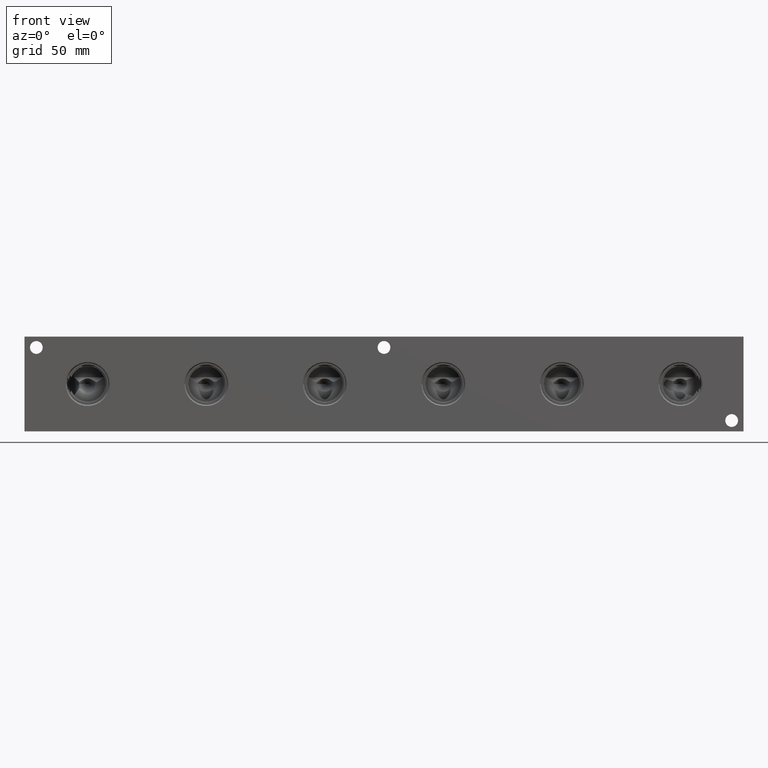
[diagram: clean part render]
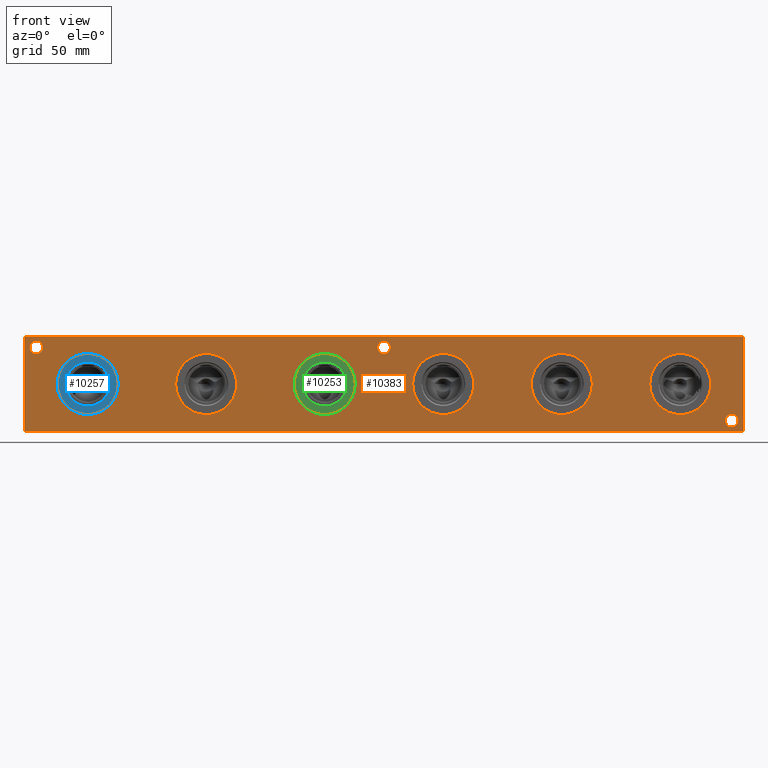
[diagram: same view with three faces highlighted in distinct colors, each labeled with its STEP entity id]
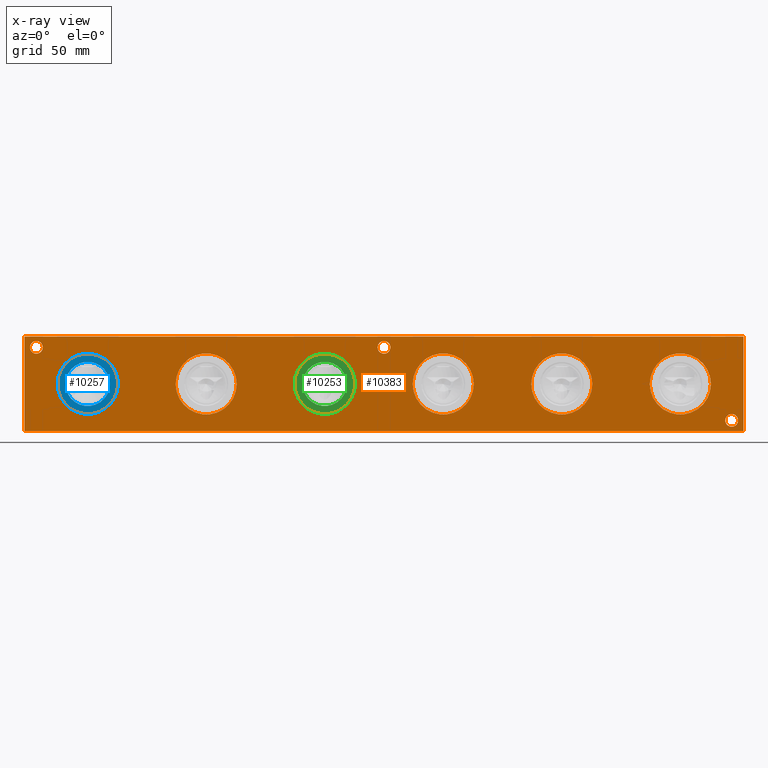
[diagram: x-ray of the same camera — body ghosted, the three highlighted faces saturated]
A machine part, front view with three faces highlighted in distinct colors.
The next image is the same camera in x-ray (body ghosted, the three faces saturated) — at least one of them is partly hidden behind the body in this view.
Their STEP definitions:

[orange] entity #10383 — the highlighted planar face has unit normal (0, -1, 0).
#431=CIRCLE('',#10884,24.5618);
#432=CIRCLE('',#10885,24.5618);
#436=CIRCLE('',#10898,24.5618);
#437=CIRCLE('',#10899,24.5618);
#441=CIRCLE('',#10907,24.5618);
#442=CIRCLE('',#10908,24.5618);
#446=CIRCLE('',#10921,24.5618);
#447=CIRCLE('',#10922,24.5618);
#451=CIRCLE('',#10935,24.5618);
#452=CIRCLE('',#10936,24.5618);
#456=CIRCLE('',#10944,24.5618);
#457=CIRCLE('',#10945,24.5618);
#470=CIRCLE('',#10974,5.1562);
#471=CIRCLE('',#10975,5.1562);
#473=CIRCLE('',#10983,5.1562);
#474=CIRCLE('',#10984,5.1562);
#476=CIRCLE('',#10992,5.1562);
#477=CIRCLE('',#10993,5.1562);
#654=FACE_BOUND('',#2272,.T.);
#655=FACE_BOUND('',#2273,.T.);
#656=FACE_BOUND('',#2274,.T.);
#657=FACE_BOUND('',#2275,.T.);
#658=FACE_BOUND('',#2276,.T.);
#659=FACE_BOUND('',#2277,.T.);
#660=FACE_BOUND('',#2278,.T.);
#661=FACE_BOUND('',#2279,.T.);
#662=FACE_BOUND('',#2280,.T.);
#1654=FACE_OUTER_BOUND('',#2271,.T.);
#2271=EDGE_LOOP('',(#9257,#9258,#9259,#9260));
#2272=EDGE_LOOP('',(#9261,#9262));
#2273=EDGE_LOOP('',(#9263,#9264));
#2274=EDGE_LOOP('',(#9265,#9266));
#2275=EDGE_LOOP('',(#9267,#9268));
#2276=EDGE_LOOP('',(#9269,#9270));
#2277=EDGE_LOOP('',(#9271,#9272));
#2278=EDGE_LOOP('',(#9273,#9274));
#2279=EDGE_LOOP('',(#9275,#9276));
#2280=EDGE_LOOP('',(#9277,#9278));
#2546=LINE('',#15995,#3332);
#3065=LINE('',#18793,#3851);
#3070=LINE('',#18802,#3856);
#3071=LINE('',#18804,#3857);
#3332=VECTOR('',#11585,10.);
#3851=VECTOR('',#13574,10.);
#3856=VECTOR('',#13583,10.);
#3857=VECTOR('',#13586,10.);
#4178=VERTEX_POINT('',#15993);
#4179=VERTEX_POINT('',#15994);
#4666=VERTEX_POINT('',#18082);
#4667=VERTEX_POINT('',#18083);
#4675=VERTEX_POINT('',#18130);
#4676=VERTEX_POINT('',#18131);
#4681=VERTEX_POINT('',#18148);
#4682=VERTEX_POINT('',#18149);
#4690=VERTEX_POINT('',#18196);
#4691=VERTEX_POINT('',#18197);
#4699=VERTEX_POINT('',#18244);
#4700=VERTEX_POINT('',#18245);
#4707=VERTEX_POINT('',#18298);
#4708=VERTEX_POINT('',#18299);
#4710=VERTEX_POINT('',#18352);
#4711=VERTEX_POINT('',#18353);
#4715=VERTEX_POINT('',#18368);
#4716=VERTEX_POINT('',#18369);
#4720=VERTEX_POINT('',#18384);
#4721=VERTEX_POINT('',#18385);
#4834=VERTEX_POINT('',#18791);
#4836=VERTEX_POINT('',#18800);
#5317=EDGE_CURVE('',#4178,#4179,#2546,.T.);
#6033=EDGE_CURVE('',#4666,#4667,#431,.T.);
#6034=EDGE_CURVE('',#4667,#4666,#432,.T.);
#6046=EDGE_CURVE('',#4675,#4676,#436,.T.);
#6047=EDGE_CURVE('',#4676,#4675,#437,.T.);
#6054=EDGE_CURVE('',#4681,#4682,#441,.T.);
#6055=EDGE_CURVE('',#4682,#4681,#442,.T.);
#6067=EDGE_CURVE('',#4690,#4691,#446,.T.);
#6068=EDGE_CURVE('',#4691,#4690,#447,.T.);
#6080=EDGE_CURVE('',#4699,#4700,#451,.T.);
#6081=EDGE_CURVE('',#4700,#4699,#452,.T.);
#6091=EDGE_CURVE('',#4707,#4708,#456,.T.);
#6092=EDGE_CURVE('',#4708,#4707,#457,.T.);
#6109=EDGE_CURVE('',#4710,#4711,#470,.T.);
#6110=EDGE_CURVE('',#4711,#4710,#471,.T.);
#6118=EDGE_CURVE('',#4715,#4716,#473,.T.);
#6119=EDGE_CURVE('',#4716,#4715,#474,.T.);
#6127=EDGE_CURVE('',#4720,#4721,#476,.T.);
#6128=EDGE_CURVE('',#4721,#4720,#477,.T.);
#6314=EDGE_CURVE('',#4834,#4178,#3065,.T.);
#6319=EDGE_CURVE('',#4836,#4179,#3070,.T.);
#6320=EDGE_CURVE('',#4834,#4836,#3071,.T.);
#9257=ORIENTED_EDGE('',*,*,#6320,.T.);
#9258=ORIENTED_EDGE('',*,*,#6319,.T.);
#9259=ORIENTED_EDGE('',*,*,#5317,.F.);
#9260=ORIENTED_EDGE('',*,*,#6314,.F.);
#9261=ORIENTED_EDGE('',*,*,#6033,.T.);
#9262=ORIENTED_EDGE('',*,*,#6034,.T.);
#9263=ORIENTED_EDGE('',*,*,#6046,.T.);
#9264=ORIENTED_EDGE('',*,*,#6047,.T.);
#9265=ORIENTED_EDGE('',*,*,#6054,.T.);
#9266=ORIENTED_EDGE('',*,*,#6055,.T.);
#9267=ORIENTED_EDGE('',*,*,#6067,.T.);
#9268=ORIENTED_EDGE('',*,*,#6068,.T.);
#9269=ORIENTED_EDGE('',*,*,#6080,.T.);
#9270=ORIENTED_EDGE('',*,*,#6081,.T.);
#9271=ORIENTED_EDGE('',*,*,#6091,.T.);
#9272=ORIENTED_EDGE('',*,*,#6092,.T.);
#9273=ORIENTED_EDGE('',*,*,#6109,.T.);
#9274=ORIENTED_EDGE('',*,*,#6110,.T.);
#9275=ORIENTED_EDGE('',*,*,#6118,.T.);
#9276=ORIENTED_EDGE('',*,*,#6119,.T.);
#9277=ORIENTED_EDGE('',*,*,#6127,.T.);
#9278=ORIENTED_EDGE('',*,*,#6128,.T.);
#9521=PLANE('',#11198);
#10383=ADVANCED_FACE('',(#1654,#654,#655,#656,#657,#658,#659,#660,#661,
#662),#9521,.T.);
#10884=AXIS2_PLACEMENT_3D('',#18084,#12860,#12861);
#10885=AXIS2_PLACEMENT_3D('',#18085,#12862,#12863);
#10898=AXIS2_PLACEMENT_3D('',#18132,#12891,#12892);
#10899=AXIS2_PLACEMENT_3D('',#18133,#12893,#12894);
#10907=AXIS2_PLACEMENT_3D('',#18150,#12912,#12913);
#10908=AXIS2_PLACEMENT_3D('',#18151,#12914,#12915);
#10921=AXIS2_PLACEMENT_3D('',#18198,#12943,#12944);
#10922=AXIS2_PLACEMENT_3D('',#18199,#12945,#12946);
#10935=AXIS2_PLACEMENT_3D('',#18246,#12974,#12975);
#10936=AXIS2_PLACEMENT_3D('',#18247,#12976,#12977);
#10944=AXIS2_PLACEMENT_3D('',#18300,#12995,#12996);
#10945=AXIS2_PLACEMENT_3D('',#18301,#12997,#12998);
#10974=AXIS2_PLACEMENT_3D('',#18354,#13058,#13059);
#10975=AXIS2_PLACEMENT_3D('',#18355,#13060,#13061);
#10983=AXIS2_PLACEMENT_3D('',#18370,#13078,#13079);
#10984=AXIS2_PLACEMENT_3D('',#18371,#13080,#13081);
#10992=AXIS2_PLACEMENT_3D('',#18386,#13098,#13099);
#10993=AXIS2_PLACEMENT_3D('',#18387,#13100,#13101);
#11198=AXIS2_PLACEMENT_3D('',#18803,#13584,#13585);
#11585=DIRECTION('',(1.,0.,0.));
#12860=DIRECTION('center_axis',(0.,1.,0.));
#12861=DIRECTION('ref_axis',(1.,0.,0.));
#12862=DIRECTION('center_axis',(0.,1.,0.));
#12863=DIRECTION('ref_axis',(1.,0.,0.));
#12891=DIRECTION('center_axis',(0.,1.,0.));
#12892=DIRECTION('ref_axis',(1.,0.,0.));
#12893=DIRECTION('center_axis',(0.,1.,0.));
#12894=DIRECTION('ref_axis',(1.,0.,0.));
#12912=DIRECTION('center_axis',(0.,1.,0.));
#12913=DIRECTION('ref_axis',(1.,0.,0.));
#12914=DIRECTION('center_axis',(0.,1.,0.));
#12915=DIRECTION('ref_axis',(1.,0.,0.));
#12943=DIRECTION('center_axis',(0.,1.,0.));
#12944=DIRECTION('ref_axis',(1.,0.,0.));
#12945=DIRECTION('center_axis',(0.,1.,0.));
#12946=DIRECTION('ref_axis',(1.,0.,0.));
#12974=DIRECTION('center_axis',(0.,1.,0.));
#12975=DIRECTION('ref_axis',(1.,0.,0.));
#12976=DIRECTION('center_axis',(0.,1.,0.));
#12977=DIRECTION('ref_axis',(1.,0.,0.));
#12995=DIRECTION('center_axis',(0.,1.,0.));
#12996=DIRECTION('ref_axis',(1.,0.,0.));
#12997=DIRECTION('center_axis',(0.,1.,0.));
#12998=DIRECTION('ref_axis',(1.,0.,0.));
#13058=DIRECTION('center_axis',(0.,1.,0.));
#13059=DIRECTION('ref_axis',(1.,0.,0.));
#13060=DIRECTION('center_axis',(0.,1.,0.));
#13061=DIRECTION('ref_axis',(1.,0.,0.));
#13078=DIRECTION('center_axis',(0.,1.,0.));
#13079=DIRECTION('ref_axis',(1.,0.,0.));
#13080=DIRECTION('center_axis',(0.,1.,0.));
#13081=DIRECTION('ref_axis',(1.,0.,0.));
#13098=DIRECTION('center_axis',(0.,1.,0.));
#13099=DIRECTION('ref_axis',(1.,0.,0.));
#13100=DIRECTION('center_axis',(0.,1.,0.));
#13101=DIRECTION('ref_axis',(1.,0.,0.));
#13574=DIRECTION('',(0.,0.,1.));
#13583=DIRECTION('',(0.,0.,1.));
#13584=DIRECTION('center_axis',(0.,-1.,0.));
#13585=DIRECTION('ref_axis',(1.,0.,0.));
#13586=DIRECTION('',(1.,0.,0.));
#15993=CARTESIAN_POINT('',(0.,0.,76.2));
#15994=CARTESIAN_POINT('',(577.85,0.,76.2));
#15995=CARTESIAN_POINT('',(0.,0.,76.2));
#18082=CARTESIAN_POINT('',(456.3618,0.,38.1));
#18083=CARTESIAN_POINT('',(407.2382,0.,38.1));
#18084=CARTESIAN_POINT('Origin',(431.8,0.,38.1));
#18085=CARTESIAN_POINT('Origin',(431.8,0.,38.1));
#18130=CARTESIAN_POINT('',(265.8618,0.,38.1));
#18131=CARTESIAN_POINT('',(216.7382,0.,38.1));
#18132=CARTESIAN_POINT('Origin',(241.3,0.,38.1));
#18133=CARTESIAN_POINT('Origin',(241.3,0.,38.1));
#18148=CARTESIAN_POINT('',(75.3618,0.,38.1));
#18149=CARTESIAN_POINT('',(26.2382,0.,38.1));
#18150=CARTESIAN_POINT('Origin',(50.8,0.,38.1));
#18151=CARTESIAN_POINT('Origin',(50.8,0.,38.1));
#18196=CARTESIAN_POINT('',(170.6118,0.,38.1));
#18197=CARTESIAN_POINT('',(121.4882,0.,38.1));
#18198=CARTESIAN_POINT('Origin',(146.05,0.,38.1));
#18199=CARTESIAN_POINT('Origin',(146.05,0.,38.1));
#18244=CARTESIAN_POINT('',(361.1118,0.,38.1));
#18245=CARTESIAN_POINT('',(311.9882,0.,38.1));
#18246=CARTESIAN_POINT('Origin',(336.55,0.,38.1));
#18247=CARTESIAN_POINT('Origin',(336.55,0.,38.1));
#18298=CARTESIAN_POINT('',(551.6118,0.,38.1));
#18299=CARTESIAN_POINT('',(502.4882,0.,38.1));
#18300=CARTESIAN_POINT('Origin',(527.05,0.,38.1));
#18301=CARTESIAN_POINT('Origin',(527.05,0.,38.1));
#18352=CARTESIAN_POINT('',(294.0812,0.,67.4624));
#18353=CARTESIAN_POINT('',(283.7688,0.,67.4624));
#18354=CARTESIAN_POINT('Origin',(288.925,0.,67.4624));
#18355=CARTESIAN_POINT('Origin',(288.925,0.,67.4624));
#18368=CARTESIAN_POINT('',(14.6812,0.,67.4624));
#18369=CARTESIAN_POINT('',(4.3688,0.,67.4624));
#18370=CARTESIAN_POINT('Origin',(9.525,0.,67.4624));
#18371=CARTESIAN_POINT('Origin',(9.525,0.,67.4624));
#18384=CARTESIAN_POINT('',(573.4812,0.,8.7376));
#18385=CARTESIAN_POINT('',(563.1688,0.,8.7376));
#18386=CARTESIAN_POINT('Origin',(568.325,0.,8.7376));
#18387=CARTESIAN_POINT('Origin',(568.325,0.,8.7376));
#18791=CARTESIAN_POINT('',(0.,0.,0.));
#18793=CARTESIAN_POINT('',(0.,0.,0.));
#18800=CARTESIAN_POINT('',(577.85,0.,0.));
#18802=CARTESIAN_POINT('',(577.85,0.,0.));
#18803=CARTESIAN_POINT('Origin',(0.,0.,0.));
#18804=CARTESIAN_POINT('',(0.,0.,0.));

[blue] entity #10257 — the highlighted planar face has unit normal (0, -1, 0).
#438=CIRCLE('',#10903,24.5618);
#439=CIRCLE('',#10904,24.5618);
#440=CIRCLE('',#10905,17.7546);
#631=FACE_BOUND('',#2123,.T.);
#1528=FACE_OUTER_BOUND('',#2122,.T.);
#2122=EDGE_LOOP('',(#8623,#8624));
#2123=EDGE_LOOP('',(#8625));
#4678=VERTEX_POINT('',#18141);
#4679=VERTEX_POINT('',#18142);
#4680=VERTEX_POINT('',#18145);
#6051=EDGE_CURVE('',#4678,#4679,#438,.T.);
#6052=EDGE_CURVE('',#4679,#4678,#439,.T.);
#6053=EDGE_CURVE('',#4680,#4680,#440,.T.);
#8623=ORIENTED_EDGE('',*,*,#6051,.T.);
#8624=ORIENTED_EDGE('',*,*,#6052,.T.);
#8625=ORIENTED_EDGE('',*,*,#6053,.F.);
#9498=PLANE('',#10902);
#10257=ADVANCED_FACE('',(#1528,#631),#9498,.T.);
#10902=AXIS2_PLACEMENT_3D('',#18140,#12902,#12903);
#10903=AXIS2_PLACEMENT_3D('',#18143,#12904,#12905);
#10904=AXIS2_PLACEMENT_3D('',#18144,#12906,#12907);
#10905=AXIS2_PLACEMENT_3D('',#18146,#12908,#12909);
#12902=DIRECTION('center_axis',(0.,-1.,0.));
#12903=DIRECTION('ref_axis',(1.,0.,0.));
#12904=DIRECTION('center_axis',(0.,-1.,0.));
#12905=DIRECTION('ref_axis',(1.,0.,0.));
#12906=DIRECTION('center_axis',(0.,-1.,0.));
#12907=DIRECTION('ref_axis',(1.,0.,0.));
#12908=DIRECTION('center_axis',(0.,-1.,0.));
#12909=DIRECTION('ref_axis',(1.,0.,0.));
#18140=CARTESIAN_POINT('Origin',(50.8,0.7874,38.1));
#18141=CARTESIAN_POINT('',(75.3618,0.7874,38.1));
#18142=CARTESIAN_POINT('',(26.2382,0.7874,38.1));
#18143=CARTESIAN_POINT('Origin',(50.8,0.7874,38.1));
#18144=CARTESIAN_POINT('Origin',(50.8,0.7874,38.1));
#18145=CARTESIAN_POINT('',(33.0454,0.7874,38.1));
#18146=CARTESIAN_POINT('Origin',(50.8,0.7874,38.1));

[green] entity #10253 — the highlighted planar face has unit normal (0, -1, 0).
#433=CIRCLE('',#10894,24.5618);
#434=CIRCLE('',#10895,24.5618);
#435=CIRCLE('',#10896,17.7546);
#630=FACE_BOUND('',#2118,.T.);
#1524=FACE_OUTER_BOUND('',#2117,.T.);
#2117=EDGE_LOOP('',(#8603,#8604));
#2118=EDGE_LOOP('',(#8605));
#4672=VERTEX_POINT('',#18123);
#4673=VERTEX_POINT('',#18124);
#4674=VERTEX_POINT('',#18127);
#6043=EDGE_CURVE('',#4672,#4673,#433,.T.);
#6044=EDGE_CURVE('',#4673,#4672,#434,.T.);
#6045=EDGE_CURVE('',#4674,#4674,#435,.T.);
#8603=ORIENTED_EDGE('',*,*,#6043,.T.);
#8604=ORIENTED_EDGE('',*,*,#6044,.T.);
#8605=ORIENTED_EDGE('',*,*,#6045,.F.);
#9497=PLANE('',#10893);
#10253=ADVANCED_FACE('',(#1524,#630),#9497,.T.);
#10893=AXIS2_PLACEMENT_3D('',#18122,#12881,#12882);
#10894=AXIS2_PLACEMENT_3D('',#18125,#12883,#12884);
#10895=AXIS2_PLACEMENT_3D('',#18126,#12885,#12886);
#10896=AXIS2_PLACEMENT_3D('',#18128,#12887,#12888);
#12881=DIRECTION('center_axis',(0.,-1.,0.));
#12882=DIRECTION('ref_axis',(1.,0.,0.));
#12883=DIRECTION('center_axis',(0.,-1.,0.));
#12884=DIRECTION('ref_axis',(1.,0.,0.));
#12885=DIRECTION('center_axis',(0.,-1.,0.));
#12886=DIRECTION('ref_axis',(1.,0.,0.));
#12887=DIRECTION('center_axis',(0.,-1.,0.));
#12888=DIRECTION('ref_axis',(1.,0.,0.));
#18122=CARTESIAN_POINT('Origin',(241.3,0.7874,38.1));
#18123=CARTESIAN_POINT('',(265.8618,0.7874,38.1));
#18124=CARTESIAN_POINT('',(216.7382,0.7874,38.1));
#18125=CARTESIAN_POINT('Origin',(241.3,0.7874,38.1));
#18126=CARTESIAN_POINT('Origin',(241.3,0.7874,38.1));
#18127=CARTESIAN_POINT('',(223.5454,0.7874,38.1));
#18128=CARTESIAN_POINT('Origin',(241.3,0.7874,38.1));